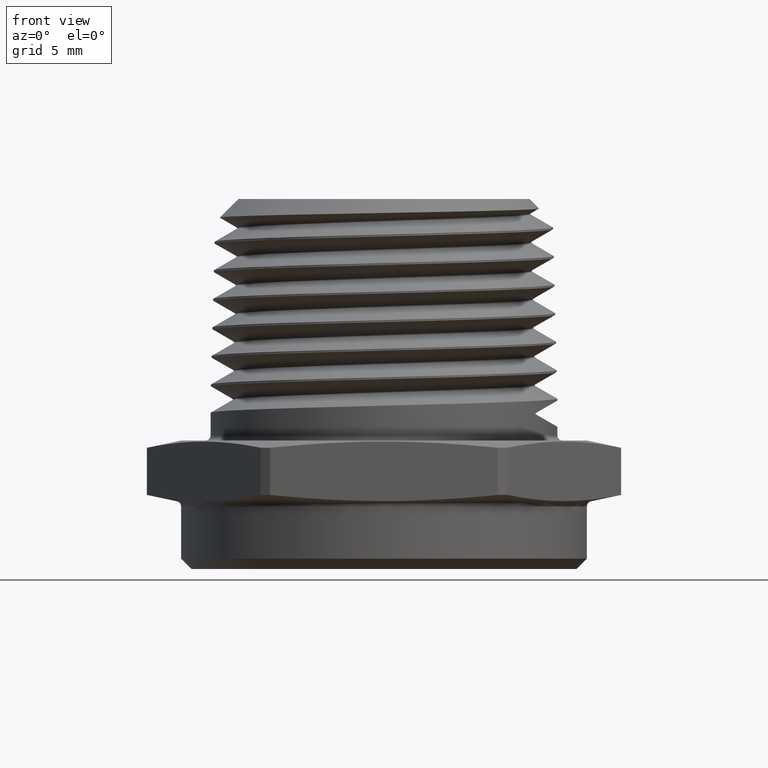
[diagram: clean part render]
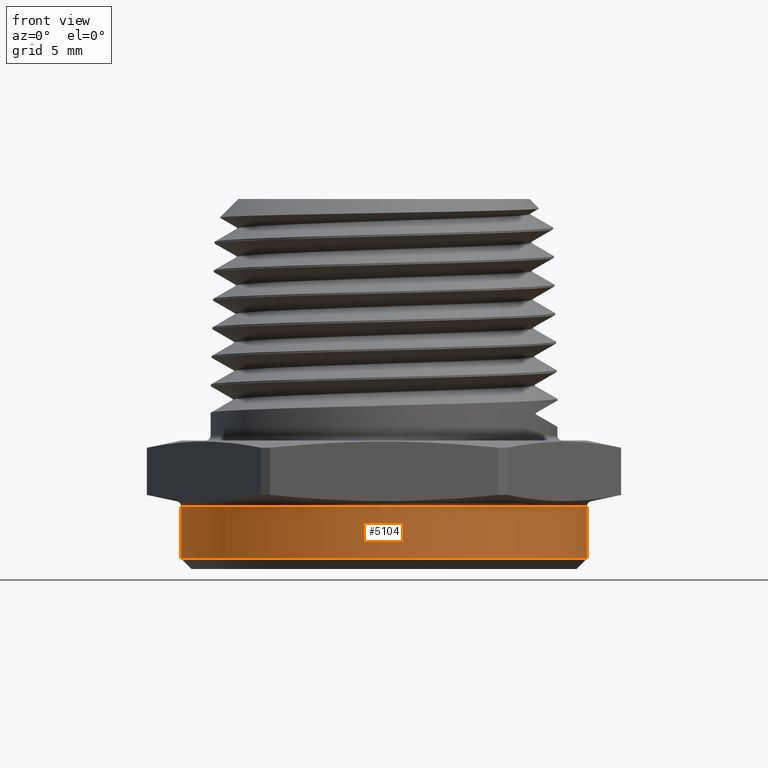
[diagram: same view with one face highlighted and labeled with its STEP entity id]
A machine part, front view. The second image highlights one B-rep face of the part: STEP entity #5104.
In plain terms, the highlighted cylindrical surface (partial cylindrical patch) has radius 10.033 mm, axis along (0, 0, 1).
Its self-contained STEP definition (entity closure, byte-faithful):
#83 = EDGE_LOOP ( 'NONE', ( #138, #134, #135, #136 ) ) ;
#134 = ORIENTED_EDGE ( 'NONE', *, *, #3923, .T. ) ;
#135 = ORIENTED_EDGE ( 'NONE', *, *, #3946, .T. ) ;
#136 = ORIENTED_EDGE ( 'NONE', *, *, #4040, .T. ) ;
#138 = ORIENTED_EDGE ( 'NONE', *, *, #3944, .F. ) ;
#565 = DIRECTION ( 'NONE',  ( -0.0000000000000000000, -0.0000000000000000000, 1.000000000000000000 ) ) ;
#569 = DIRECTION ( 'NONE',  ( -0.0000000000000000000, -0.0000000000000000000, 1.000000000000000000 ) ) ;
#573 = CARTESIAN_POINT ( 'NONE',  ( -0.3950000000000000700, 4.837354856632045600E-017, -0.1300000000000000000 ) ) ;
#577 = CARTESIAN_POINT ( 'NONE',  ( 0.3950000000000000700, 0.0000000000000000000, -0.1300000000000000000 ) ) ;
#1114 = AXIS2_PLACEMENT_3D ( 'NONE', #3049, #3045, #3046 ) ;
#1895 = CARTESIAN_POINT ( 'NONE',  ( 0.0000000000000000000, 0.0000000000000000000, -0.008097840331950215800 ) ) ;
#1896 = DIRECTION ( 'NONE',  ( -6.123233995736756200E-017, -0.0000000000000000000, -1.000000000000000000 ) ) ;
#1897 = DIRECTION ( 'NONE',  ( -1.000000000000000000, 0.0000000000000000000, 6.213657422298065900E-017 ) ) ;
#2896 = CARTESIAN_POINT ( 'NONE',  ( -0.3950000000000000700, 4.837354856632045600E-017, -0.008097840331950191500 ) ) ;
#2941 = CARTESIAN_POINT ( 'NONE',  ( 0.3950000000000000700, 0.0000000000000000000, -0.1100000000000007500 ) ) ;
#2942 = CARTESIAN_POINT ( 'NONE',  ( 0.3950000000000000700, 0.0000000000000000000, -0.008097840331950240100 ) ) ;
#2945 = CARTESIAN_POINT ( 'NONE',  ( -0.3950000000000000700, 4.837354856632045600E-017, -0.1100000000000007500 ) ) ;
#3045 = DIRECTION ( 'NONE',  ( -0.0000000000000000000, -0.0000000000000000000, 1.000000000000000000 ) ) ;
#3046 = DIRECTION ( 'NONE',  ( 1.000000000000000000, 0.0000000000000000000, 0.0000000000000000000 ) ) ;
#3049 = CARTESIAN_POINT ( 'NONE',  ( 0.0000000000000000000, 0.0000000000000000000, -0.1300000000000000000 ) ) ;
#3514 = AXIS2_PLACEMENT_3D ( 'NONE', #4737, #4738, #4739 ) ;
#3549 = AXIS2_PLACEMENT_3D ( 'NONE', #1895, #1896, #1897 ) ;
#3923 = EDGE_CURVE ( 'NONE', #4455, #4451, #4527, .T. ) ;
#3944 = EDGE_CURVE ( 'NONE', #4455, #4405, #4554, .T. ) ;
#3946 = EDGE_CURVE ( 'NONE', #4451, #4452, #4559, .T. ) ;
#4040 = EDGE_CURVE ( 'NONE', #4452, #4405, #4629, .T. ) ;
#4405 = VERTEX_POINT ( 'NONE', #2896 ) ;
#4451 = VERTEX_POINT ( 'NONE', #2941 ) ;
#4452 = VERTEX_POINT ( 'NONE', #2942 ) ;
#4455 = VERTEX_POINT ( 'NONE', #2945 ) ;
#4527 = CIRCLE ( 'NONE', #3514, 0.3950000000000000700 ) ;
#4554 = LINE ( 'NONE', #573, #4558 ) ;
#4558 = VECTOR ( 'NONE', #569, 39.37007874015748100 ) ;
#4559 = LINE ( 'NONE', #577, #4561 ) ;
#4561 = VECTOR ( 'NONE', #565, 39.37007874015748100 ) ;
#4629 = CIRCLE ( 'NONE', #3549, 0.3950000000000000700 ) ;
#4720 = FACE_OUTER_BOUND ( 'NONE', #83, .T. ) ;
#4722 = CYLINDRICAL_SURFACE ( 'NONE', #1114, 0.3950000000000000700 ) ;
#4737 = CARTESIAN_POINT ( 'NONE',  ( 0.0000000000000000000, 0.0000000000000000000, -0.1100000000000007500 ) ) ;
#4738 = DIRECTION ( 'NONE',  ( 0.0000000000000000000, 0.0000000000000000000, 1.000000000000000000 ) ) ;
#4739 = DIRECTION ( 'NONE',  ( -1.000000000000000000, 0.0000000000000000000, 0.0000000000000000000 ) ) ;
#5104 = ADVANCED_FACE ( 'NONE', ( #4720 ), #4722, .T. ) ;